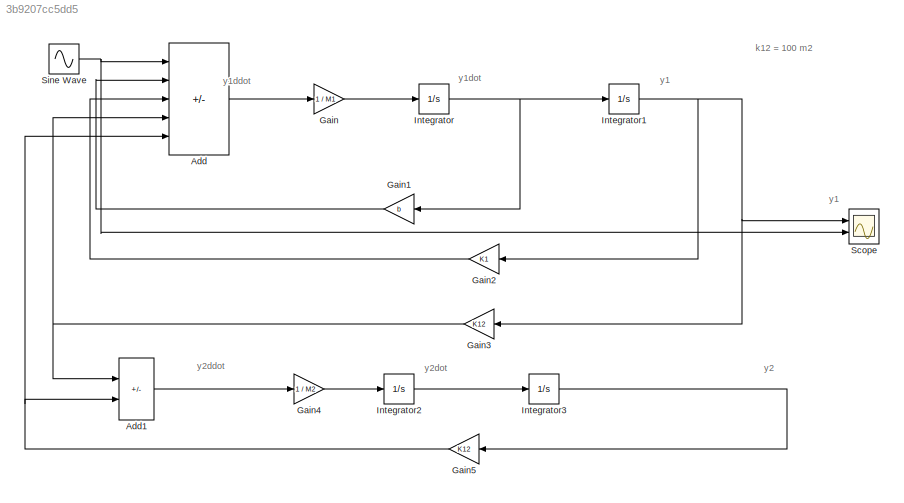
MODEL slx_3b9207cc5dd5
KIND model
CONFIG AbsTol = auto
CONFIG EnableMultiTasking = off
CONFIG FixedStep = auto
CONFIG MaxStep = auto
CONFIG MinStep = auto
CONFIG PreLoadFcn = M1 = 100;\nK1 = 50;\nb = 50;\nK12 = 500;\nM2 = 5;
CONFIG RelTol = 1e-3
CONFIG SampleTimeConstraint = Unconstrained
CONFIG SolverName = VariableStepAuto
CONFIG StartTime = 0.0
CONFIG StopTime = 15
BLOCK [Sum] Add
  IconShape = rectangular
  Inputs = +---+
  Ports = [5, 1]
BLOCK [Sum] Add1
  IconShape = rectangular
  Inputs = +-
  Ports = [2, 1]
BLOCK [Gain] Gain
  Gain = 1 / M1
BLOCK [Gain] Gain1
  Gain = b
  NameLocation = top
BLOCK [Gain] Gain2
  Gain = K1
  NameLocation = top
BLOCK [Gain] Gain3
  Gain = K12
  NameLocation = top
BLOCK [Gain] Gain4
  Gain = 1 / M2
BLOCK [Gain] Gain5
  Gain = K12
  NameLocation = top
BLOCK [Integrator] Integrator
  Ports = [1, 1]
BLOCK [Integrator] Integrator1
  Ports = [1, 1]
BLOCK [Integrator] Integrator2
  Ports = [1, 1]
BLOCK [Integrator] Integrator3
  Ports = [1, 1]
BLOCK [Scope] Scope
  Floating = off
  NumInputPorts = 2
  Ports = [2]
  ScopeSpecificationString = Simulink.scopes.TimeScopeBlockCfg('CurrentConfiguration', extmgr.ConfigurationSet(extmgr.Configuration('Core','General UI',true),extmgr.Configuration('Core','Source UI',true),extmgr.Configuration('Sources','WiredSimulink',true),extmgr.Configuration('Visuals','Time Domain',true,'SerializedDisplays',{struct('MinYLimReal','-0.00053','MaxYLimReal','0.00113','YLabelReal','','MinYLimMag','0.00000','MaxY...<+2627ch>
BLOCK [Sin] Sine Wave
  Frequency = 10
  Ports = [0, 1]
  SampleTime = 0
ANNOTATION (root): k12 = 100 m2
ANNOTATION (root): y1
ANNOTATION (root): y1ddot
ANNOTATION (root): y1dot
ANNOTATION (root): y2
ANNOTATION (root): y2ddot
ANNOTATION (root): y2dot
LINE Add1:1 -> Gain4:1
LINE Add:1 -> Gain:1
LINE Gain1:1 -> Add:2
LINE Gain2:1 -> Add:3
NET Gain3:1 -> Add1:1, Add:4
LINE Gain4:1 -> Integrator2:1
NET Gain5:1 -> Add1:2, Add:5
LINE Gain:1 -> Integrator:1
NET Integrator1:1 -> Gain2:1, Gain3:1, Scope:1
LINE Integrator2:1 -> Integrator3:1
LINE Integrator3:1 -> Gain5:1
NET Integrator:1 -> Gain1:1, Integrator1:1
NET Sine Wave:1 -> Add:1, Scope:2
note: NET lines group one-source signal fan-out (src -> all destinations, sorted); 1:1 wires keep LINE
